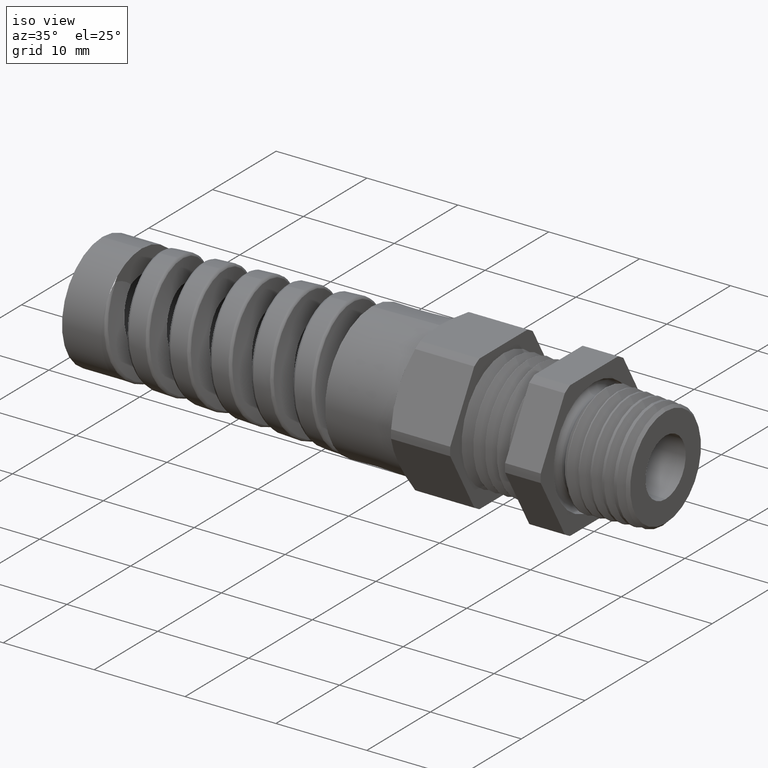
[diagram: clean part render]
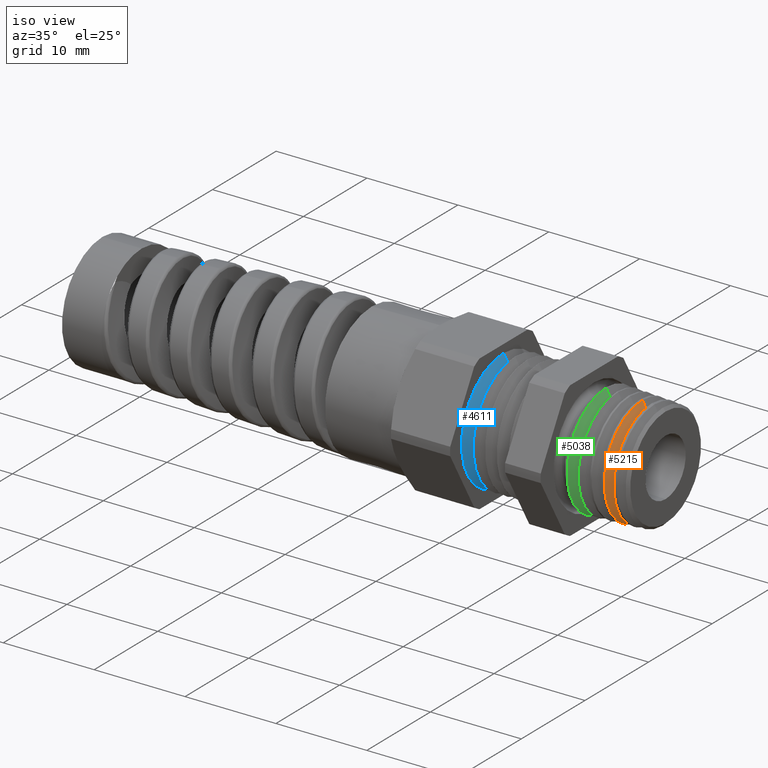
[diagram: same view with three faces highlighted in distinct colors, each labeled with its STEP entity id]
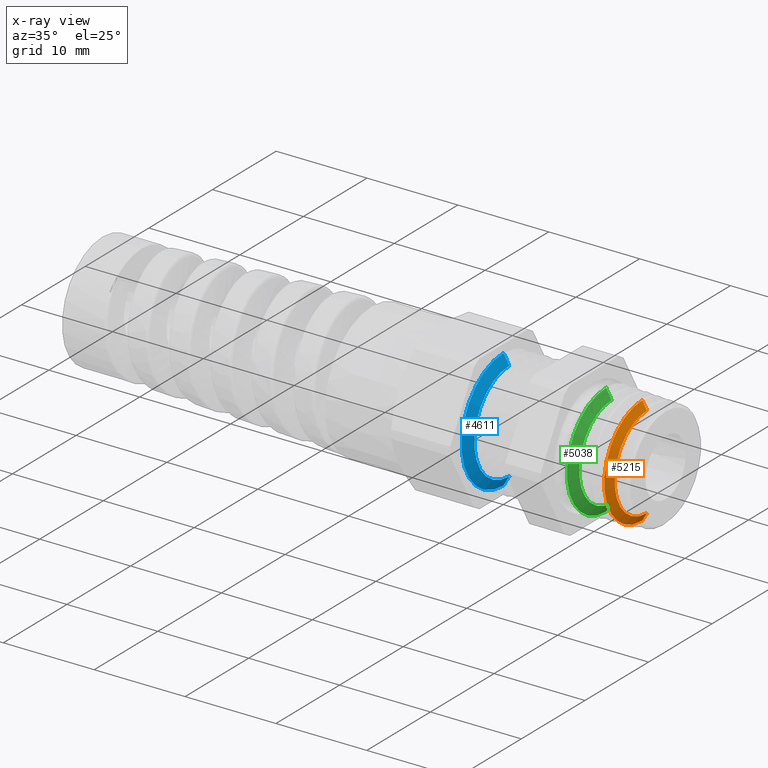
[diagram: x-ray of the same camera — body ghosted, the three highlighted faces saturated]
A machine part, iso view with three faces highlighted in distinct colors.
The next image is the same camera in x-ray (body ghosted, the three faces saturated) — at least one of them is partly hidden behind the body in this view.
Their STEP definitions:

[orange] entity #5215 — the highlighted conical surface has half-angle 60 deg.
#1709 = EDGE_CURVE ( 'NONE', #1802, #1710, #7407, .T. ) ;
#1710 = VERTEX_POINT ( 'NONE', #7403 ) ;
#1713 = VERTEX_POINT ( 'NONE', #7397 ) ;
#1715 = EDGE_CURVE ( 'NONE', #1801, #1713, #7396, .T. ) ;
#1801 = VERTEX_POINT ( 'NONE', #7728 ) ;
#1802 = VERTEX_POINT ( 'NONE', #7727 ) ;
#1968 = EDGE_CURVE ( 'NONE', #1713, #1710, #8480, .T. ) ;
#5193 = EDGE_LOOP ( 'NONE', ( #5196, #5211, #5253, #5251 ) ) ;
#5196 = ORIENTED_EDGE ( 'NONE', *, *, #1709, .F. ) ;
#5211 = ORIENTED_EDGE ( 'NONE', *, *, #5213, .T. ) ;
#5213 = EDGE_CURVE ( 'NONE', #1802, #1801, #9497, .T. ) ;
#5215 = ADVANCED_FACE ( 'NONE', ( #9493 ), #9492, .T. ) ;
#5251 = ORIENTED_EDGE ( 'NONE', *, *, #1968, .T. ) ;
#5253 = ORIENTED_EDGE ( 'NONE', *, *, #1715, .T. ) ;
#7393 = DIRECTION ( 'NONE',  ( -0.4999999999999904500, 0.0000000000000000000, 0.8660254037844440400 ) ) ;
#7394 = VECTOR ( 'NONE', #7393, 39.37007874015748900 ) ;
#7395 = CARTESIAN_POINT ( 'NONE',  ( 0.2040000000000000400, 0.0000000000000000000, 0.2450000000000000000 ) ) ;
#7396 = LINE ( 'NONE', #7395, #7394 ) ;
#7397 = CARTESIAN_POINT ( 'NONE',  ( 0.2092753410451963500, 0.0000000000000000000, 0.2358628412824662300 ) ) ;
#7403 = CARTESIAN_POINT ( 'NONE',  ( 0.2092753410451963500, 2.891148929242512300E-017, -0.2358628412824662300 ) ) ;
#7404 = DIRECTION ( 'NONE',  ( -0.4999999999999904500, 1.060575238724913300E-016, -0.8660254037844440400 ) ) ;
#7405 = VECTOR ( 'NONE', #7404, 39.37007874015748900 ) ;
#7406 = CARTESIAN_POINT ( 'NONE',  ( 0.2040000000000000400, 3.000384657911014900E-017, -0.2450000000000000000 ) ) ;
#7407 = LINE ( 'NONE', #7406, #7405 ) ;
#7727 = CARTESIAN_POINT ( 'NONE',  ( 0.2296709089326036100, 2.672176393332549000E-017, -0.2005366814522557000 ) ) ;
#7728 = CARTESIAN_POINT ( 'NONE',  ( 0.2296709089326036100, 0.0000000000000000000, 0.2005366814522557000 ) ) ;
#8422 = CARTESIAN_POINT ( 'NONE',  ( 0.2092753410451963500, 0.0000000000000000000, 0.0000000000000000000 ) ) ;
#8477 = DIRECTION ( 'NONE',  ( 0.0000000000000000000, 0.0000000000000000000, 1.000000000000000000 ) ) ;
#8478 = DIRECTION ( 'NONE',  ( 1.000000000000000000, 0.0000000000000000000, 0.0000000000000000000 ) ) ;
#8479 = AXIS2_PLACEMENT_3D ( 'NONE', #8422, #8478, #8477 ) ;
#8480 = CIRCLE ( 'NONE', #8479, 0.2358628412824662300 ) ;
#9492 = CONICAL_SURFACE ( 'NONE', #9552, 0.2450000000000000000, 1.047197551196608700 ) ;
#9493 = FACE_OUTER_BOUND ( 'NONE', #5193, .T. ) ;
#9494 = DIRECTION ( 'NONE',  ( 0.0000000000000000000, 0.0000000000000000000, 1.000000000000000000 ) ) ;
#9495 = DIRECTION ( 'NONE',  ( -1.000000000000000000, 0.0000000000000000000, 0.0000000000000000000 ) ) ;
#9496 = AXIS2_PLACEMENT_3D ( 'NONE', #9502, #9495, #9494 ) ;
#9497 = CIRCLE ( 'NONE', #9496, 0.2005366814522557000 ) ;
#9502 = CARTESIAN_POINT ( 'NONE',  ( 0.2296709089326036100, 0.0000000000000000000, 0.0000000000000000000 ) ) ;
#9549 = DIRECTION ( 'NONE',  ( 0.0000000000000000000, 0.0000000000000000000, 1.000000000000000000 ) ) ;
#9550 = DIRECTION ( 'NONE',  ( -1.000000000000000000, 0.0000000000000000000, 0.0000000000000000000 ) ) ;
#9551 = CARTESIAN_POINT ( 'NONE',  ( 0.2040000000000000400, 0.0000000000000000000, 0.0000000000000000000 ) ) ;
#9552 = AXIS2_PLACEMENT_3D ( 'NONE', #9551, #9550, #9549 ) ;

[blue] entity #4611 — the highlighted conical surface has half-angle 60 deg.
#719 = EDGE_CURVE ( 'NONE', #738, #737, #2800, .T. ) ;
#737 = VERTEX_POINT ( 'NONE', #2832 ) ;
#738 = VERTEX_POINT ( 'NONE', #2831 ) ;
#740 = EDGE_CURVE ( 'NONE', #767, #765, #2829, .T. ) ;
#765 = VERTEX_POINT ( 'NONE', #2943 ) ;
#767 = VERTEX_POINT ( 'NONE', #2933 ) ;
#2797 = DIRECTION ( 'NONE',  ( -0.4999999999999960000, 0.0000000000000000000, 0.8660254037844409300 ) ) ;
#2798 = VECTOR ( 'NONE', #2797, 39.37007874015748100 ) ;
#2799 = CARTESIAN_POINT ( 'NONE',  ( -0.3920833333333332800, 0.0000000000000000000, 0.2596999999999999900 ) ) ;
#2800 = LINE ( 'NONE', #2799, #2798 ) ;
#2829 = LINE ( 'NONE', #2893, #2892 ) ;
#2831 = CARTESIAN_POINT ( 'NONE',  ( -0.3670833449895862200, 2.915264051327779200E-017, 0.2163987499999999500 ) ) ;
#2832 = CARTESIAN_POINT ( 'NONE',  ( -0.3920833333333332800, 0.0000000000000000000, 0.2596999999999999900 ) ) ;
#2891 = DIRECTION ( 'NONE',  ( -0.4999999999999960000, 1.060575238724909600E-016, -0.8660254037844409300 ) ) ;
#2892 = VECTOR ( 'NONE', #2891, 39.37007874015748100 ) ;
#2893 = CARTESIAN_POINT ( 'NONE',  ( -0.3920833333333332800, 3.180407737385675900E-017, -0.2596999999999999900 ) ) ;
#2933 = CARTESIAN_POINT ( 'NONE',  ( -0.3670833449895862200, 0.0000000000000000000, -0.2163987499999999500 ) ) ;
#2943 = CARTESIAN_POINT ( 'NONE',  ( -0.3920833333333332800, 3.180407737385675900E-017, -0.2596999999999999900 ) ) ;
#4607 = ORIENTED_EDGE ( 'NONE', *, *, #4666, .F. ) ;
#4608 = ORIENTED_EDGE ( 'NONE', *, *, #740, .F. ) ;
#4609 = EDGE_LOOP ( 'NONE', ( #4608, #4607, #4610, #4741 ) ) ;
#4610 = ORIENTED_EDGE ( 'NONE', *, *, #719, .T. ) ;
#4611 = ADVANCED_FACE ( 'NONE', ( #8870 ), #8869, .T. ) ;
#4666 = EDGE_CURVE ( 'NONE', #738, #767, #9260, .T. ) ;
#4741 = ORIENTED_EDGE ( 'NONE', *, *, #5076, .T. ) ;
#5076 = EDGE_CURVE ( 'NONE', #737, #765, #9439, .T. ) ;
#8865 = DIRECTION ( 'NONE',  ( 0.0000000000000000000, 0.0000000000000000000, 1.000000000000000000 ) ) ;
#8866 = DIRECTION ( 'NONE',  ( -1.000000000000000000, 0.0000000000000000000, 0.0000000000000000000 ) ) ;
#8867 = CARTESIAN_POINT ( 'NONE',  ( -0.3920833333333332800, 0.0000000000000000000, 0.0000000000000000000 ) ) ;
#8868 = AXIS2_PLACEMENT_3D ( 'NONE', #8867, #8866, #8865 ) ;
#8869 = CONICAL_SURFACE ( 'NONE', #8868, 0.2596999999999999900, 1.047197551196602300 ) ;
#8870 = FACE_OUTER_BOUND ( 'NONE', #4609, .T. ) ;
#9251 = DIRECTION ( 'NONE',  ( 0.0000000000000000000, 0.0000000000000000000, -1.000000000000000000 ) ) ;
#9252 = DIRECTION ( 'NONE',  ( 1.000000000000000000, 0.0000000000000000000, 0.0000000000000000000 ) ) ;
#9253 = CARTESIAN_POINT ( 'NONE',  ( -0.3670833449895862200, 0.0000000000000000000, 0.0000000000000000000 ) ) ;
#9254 = AXIS2_PLACEMENT_3D ( 'NONE', #9253, #9252, #9251 ) ;
#9260 = CIRCLE ( 'NONE', #9254, 0.2163987499999999500 ) ;
#9435 = DIRECTION ( 'NONE',  ( 0.0000000000000000000, 0.0000000000000000000, -1.000000000000000000 ) ) ;
#9436 = DIRECTION ( 'NONE',  ( 1.000000000000000000, 0.0000000000000000000, 0.0000000000000000000 ) ) ;
#9437 = CARTESIAN_POINT ( 'NONE',  ( -0.3920833333333332800, 0.0000000000000000000, 0.0000000000000000000 ) ) ;
#9438 = AXIS2_PLACEMENT_3D ( 'NONE', #9437, #9436, #9435 ) ;
#9439 = CIRCLE ( 'NONE', #9438, 0.2596999999999999900 ) ;

[green] entity #5038 — the highlighted conical surface has half-angle 60 deg.
#899 = VERTEX_POINT ( 'NONE', #3221 ) ;
#901 = VERTEX_POINT ( 'NONE', #3220 ) ;
#942 = EDGE_CURVE ( 'NONE', #1753, #901, #3217, .T. ) ;
#947 = EDGE_CURVE ( 'NONE', #1754, #899, #3206, .T. ) ;
#1753 = VERTEX_POINT ( 'NONE', #7571 ) ;
#1754 = VERTEX_POINT ( 'NONE', #7570 ) ;
#2010 = EDGE_CURVE ( 'NONE', #901, #899, #8544, .T. ) ;
#3202 = DIRECTION ( 'NONE',  ( -0.4999999999999904500, 1.060575238724913300E-016, -0.8660254037844440400 ) ) ;
#3203 = VECTOR ( 'NONE', #3202, 39.37007874015748900 ) ;
#3205 = CARTESIAN_POINT ( 'NONE',  ( 0.05100000000000001100, 3.000384657911014900E-017, -0.2450000000000000000 ) ) ;
#3206 = LINE ( 'NONE', #3205, #3203 ) ;
#3214 = DIRECTION ( 'NONE',  ( -0.4999999999999904500, 0.0000000000000000000, 0.8660254037844440400 ) ) ;
#3215 = VECTOR ( 'NONE', #3214, 39.37007874015748900 ) ;
#3216 = CARTESIAN_POINT ( 'NONE',  ( 0.05100000000000001100, 0.0000000000000000000, 0.2450000000000000000 ) ) ;
#3217 = LINE ( 'NONE', #3216, #3215 ) ;
#3220 = CARTESIAN_POINT ( 'NONE',  ( 0.05231883526129908800, 0.0000000000000000000, 0.2427157103206165600 ) ) ;
#3221 = CARTESIAN_POINT ( 'NONE',  ( 0.05231883526129908800, 2.973008873167903300E-017, -0.2427157103206165600 ) ) ;
#5024 = ORIENTED_EDGE ( 'NONE', *, *, #942, .T. ) ;
#5033 = EDGE_CURVE ( 'NONE', #1754, #1753, #9417, .T. ) ;
#5034 = ORIENTED_EDGE ( 'NONE', *, *, #5033, .T. ) ;
#5036 = ORIENTED_EDGE ( 'NONE', *, *, #947, .F. ) ;
#5038 = ADVANCED_FACE ( 'NONE', ( #9412 ), #9411, .T. ) ;
#5043 = EDGE_LOOP ( 'NONE', ( #5036, #5034, #5024, #5078 ) ) ;
#5078 = ORIENTED_EDGE ( 'NONE', *, *, #2010, .T. ) ;
#7570 = CARTESIAN_POINT ( 'NONE',  ( 0.07667090893260360100, 2.714138113995283100E-017, -0.2005366814522557000 ) ) ;
#7571 = CARTESIAN_POINT ( 'NONE',  ( 0.07667090893260360100, 0.0000000000000000000, 0.2005366814522557000 ) ) ;
#8536 = DIRECTION ( 'NONE',  ( 0.0000000000000000000, 0.0000000000000000000, 1.000000000000000000 ) ) ;
#8537 = DIRECTION ( 'NONE',  ( 1.000000000000000000, 0.0000000000000000000, 0.0000000000000000000 ) ) ;
#8538 = CARTESIAN_POINT ( 'NONE',  ( 0.05231883526129908800, 0.0000000000000000000, 0.0000000000000000000 ) ) ;
#8539 = AXIS2_PLACEMENT_3D ( 'NONE', #8538, #8537, #8536 ) ;
#8544 = CIRCLE ( 'NONE', #8539, 0.2427157103206165600 ) ;
#9406 = DIRECTION ( 'NONE',  ( 0.0000000000000000000, 0.0000000000000000000, 1.000000000000000000 ) ) ;
#9407 = DIRECTION ( 'NONE',  ( -1.000000000000000000, 0.0000000000000000000, 0.0000000000000000000 ) ) ;
#9408 = CARTESIAN_POINT ( 'NONE',  ( 0.05100000000000001100, 0.0000000000000000000, 0.0000000000000000000 ) ) ;
#9409 = AXIS2_PLACEMENT_3D ( 'NONE', #9408, #9407, #9406 ) ;
#9411 = CONICAL_SURFACE ( 'NONE', #9409, 0.2450000000000000000, 1.047197551196608700 ) ;
#9412 = FACE_OUTER_BOUND ( 'NONE', #5043, .T. ) ;
#9413 = DIRECTION ( 'NONE',  ( 0.0000000000000000000, 0.0000000000000000000, 1.000000000000000000 ) ) ;
#9414 = DIRECTION ( 'NONE',  ( -1.000000000000000000, 0.0000000000000000000, 0.0000000000000000000 ) ) ;
#9415 = CARTESIAN_POINT ( 'NONE',  ( 0.07667090893260360100, 0.0000000000000000000, 0.0000000000000000000 ) ) ;
#9416 = AXIS2_PLACEMENT_3D ( 'NONE', #9415, #9414, #9413 ) ;
#9417 = CIRCLE ( 'NONE', #9416, 0.2005366814522557000 ) ;